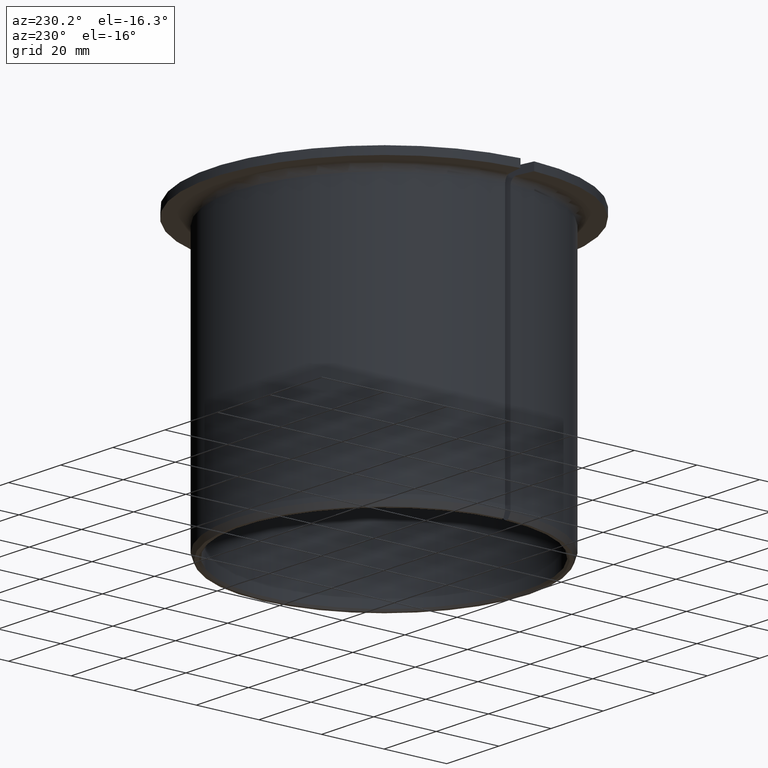
[diagram: clean part render]
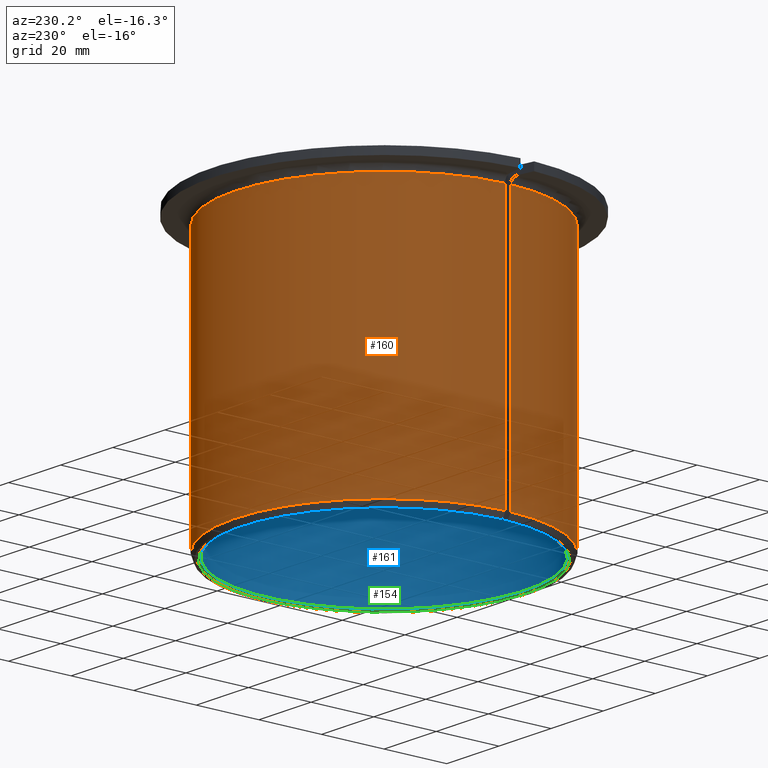
[diagram: same view with three faces highlighted in distinct colors, each labeled with its STEP entity id]
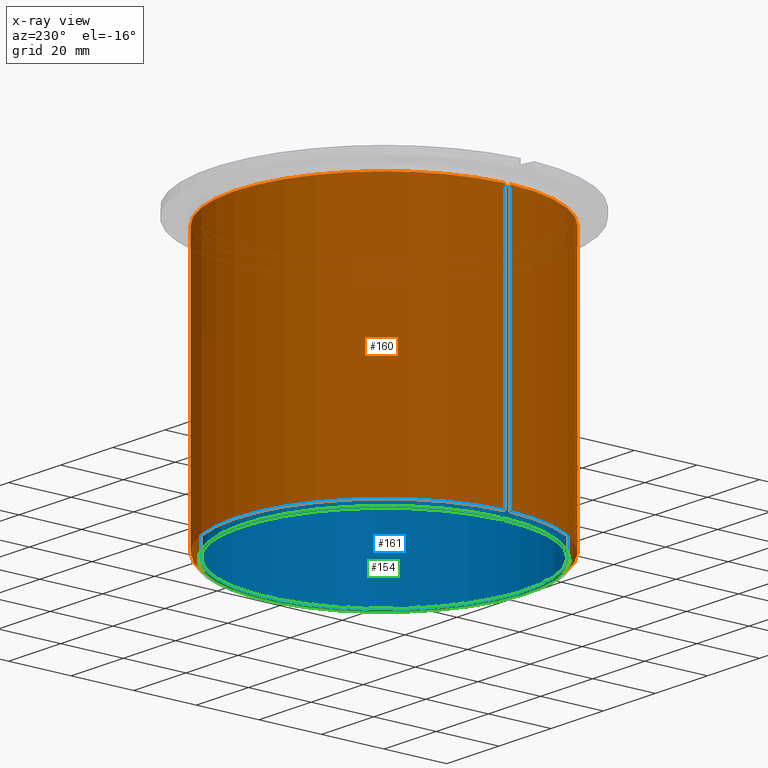
[diagram: x-ray of the same camera — body ghosted, the three highlighted faces saturated]
A machine part, auxiliary view with three faces highlighted in distinct colors.
The next image is the same camera in x-ray (body ghosted, the three faces saturated) — at least one of them is partly hidden behind the body in this view.
Their STEP definitions:

[orange] entity #160 — the highlighted cylindrical surface (partial cylindrical patch) has radius 47.5 mm, axis along (-0, 0, -1).
#160=ADVANCED_FACE('',(#181),#182,.T.);
#181=FACE_OUTER_BOUND('',#206,.T.);
#182=CYLINDRICAL_SURFACE('',#207,0.0475);
#206=EDGE_LOOP('',(#271,#272,#273,#274));
#207=AXIS2_PLACEMENT_3D('',#275,#276,#277);
#271=ORIENTED_EDGE('',*,*,#330,.T.);
#272=ORIENTED_EDGE('',*,*,#336,.T.);
#273=ORIENTED_EDGE('',*,*,#337,.F.);
#274=ORIENTED_EDGE('',*,*,#317,.F.);
#275=CARTESIAN_POINT('',(0.0,0.0,0.0));
#276=DIRECTION('',(0.0,-6.12323399573677E-017,-1.0));
#277=DIRECTION('',(0.0,1.0,-6.12323399573677E-017));
#317=EDGE_CURVE('',#351,#353,#354,.T.);
#330=EDGE_CURVE('',#351,#374,#376,.T.);
#336=EDGE_CURVE('',#374,#384,#385,.T.);
#337=EDGE_CURVE('',#353,#384,#386,.T.);
#351=VERTEX_POINT('',#421);
#353=VERTEX_POINT('',#438);
#354=LINE('',#439,#440);
#374=VERTEX_POINT('',#488);
#376=CIRCLE('',#505,0.0475);
#384=VERTEX_POINT('',#516);
#385=LINE('',#517,#518);
#386=CIRCLE('',#519,0.0475);
#421=CARTESIAN_POINT('',(0.0474918440745789,-0.000880196793837939,0.0855));
#438=CARTESIAN_POINT('',(0.0474918440745789,-0.000880196793837944,0.0018));
#439=CARTESIAN_POINT('',(0.0474918440745789,-0.000880196793837944,7.21840255120119E-020));
#440=VECTOR('',#533,1.0);
#488=CARTESIAN_POINT('',(0.0474918440745789,0.000880196793837954,0.0855));
#505=AXIS2_PLACEMENT_3D('',#551,#552,#553);
#516=CARTESIAN_POINT('',(0.0474918440745789,0.000880196793837948,0.0018));
#517=CARTESIAN_POINT('',(0.0474918440745789,0.000880196793837948,-9.94367842672578E-020));
#518=VECTOR('',#563,1.0);
#519=AXIS2_PLACEMENT_3D('',#564,#565,#566);
#533=DIRECTION('',(0.0,-6.12323399573677E-017,-1.0));
#551=CARTESIAN_POINT('',(0.0,6.93889390390723E-018,0.0855));
#552=DIRECTION('',(0.0,-6.12323399573677E-017,-1.0));
#553=DIRECTION('',(0.0,1.0,-6.12323399573677E-017));
#563=DIRECTION('',(0.0,-6.12323399573677E-017,-1.0));
#564=CARTESIAN_POINT('',(0.0,0.0,0.0018));
#565=DIRECTION('',(0.0,-6.12323399573677E-017,-1.0));
#566=DIRECTION('',(0.0,1.0,-6.12323399573677E-017));

[blue] entity #161 — the highlighted cylindrical surface (partial cylindrical patch) has radius 45 mm, axis along (-0, 0, -1).
#161=ADVANCED_FACE('',(#183),#184,.F.);
#183=FACE_OUTER_BOUND('',#208,.T.);
#184=CYLINDRICAL_SURFACE('',#209,0.045);
#208=EDGE_LOOP('',(#278,#279,#280,#281));
#209=AXIS2_PLACEMENT_3D('',#282,#283,#284);
#278=ORIENTED_EDGE('',*,*,#324,.T.);
#279=ORIENTED_EDGE('',*,*,#338,.T.);
#280=ORIENTED_EDGE('',*,*,#325,.F.);
#281=ORIENTED_EDGE('',*,*,#321,.F.);
#282=CARTESIAN_POINT('',(0.0,0.0,0.0));
#283=DIRECTION('',(0.0,-6.12323399573677E-017,-1.0));
#284=DIRECTION('',(0.0,1.0,-6.12323399573677E-017));
#321=EDGE_CURVE('',#359,#342,#361,.F.);
#324=EDGE_CURVE('',#359,#364,#366,.T.);
#325=EDGE_CURVE('',#342,#367,#368,.T.);
#338=EDGE_CURVE('',#364,#367,#387,.F.);
#342=VERTEX_POINT('',#392);
#359=VERTEX_POINT('',#449);
#361=LINE('',#454,#455);
#364=VERTEX_POINT('',#458);
#366=CIRCLE('',#463,0.045);
#367=VERTEX_POINT('',#464);
#368=CIRCLE('',#465,0.045);
#387=LINE('',#520,#521);
#392=CARTESIAN_POINT('',(0.0449978445584467,-0.000440437389269974,0.0855));
#449=CARTESIAN_POINT('',(0.0449978445584467,-0.000440437389269978,0.0006));
#454=CARTESIAN_POINT('',(0.0449978445584467,-0.000440437389269979,4.52565281520567E-020));
#455=VECTOR('',#535,1.0);
#458=CARTESIAN_POINT('',(0.0449978445584467,0.000440437389269984,0.0006));
#463=AXIS2_PLACEMENT_3D('',#539,#540,#541);
#464=CARTESIAN_POINT('',(0.0449978445584467,0.000440437389269989,0.0855));
#465=AXIS2_PLACEMENT_3D('',#542,#543,#544);
#520=CARTESIAN_POINT('',(0.0449978445584467,0.000440437389269984,-7.25092869073027E-020));
#521=VECTOR('',#567,1.0);
#535=DIRECTION('',(0.0,-6.12323399573677E-017,-1.0));
#539=CARTESIAN_POINT('',(0.0,0.0,0.0006));
#540=DIRECTION('',(0.0,-6.12323399573677E-017,-1.0));
#541=DIRECTION('',(0.0,1.0,-6.12323399573677E-017));
#542=CARTESIAN_POINT('',(0.0,6.93889390390723E-018,0.0855));
#543=DIRECTION('',(0.0,-6.12323399573677E-017,-1.0));
#544=DIRECTION('',(0.0,1.0,-6.12323399573677E-017));
#567=DIRECTION('',(0.0,-6.12323399573677E-017,-1.0));

[green] entity #154 — the highlighted conical surface has half-angle 45 deg.
#154=ADVANCED_FACE('',(#169),#170,.F.);
#169=FACE_OUTER_BOUND('',#194,.T.);
#170=CONICAL_SURFACE('',#195,0.045,0.785398163397448);
#194=EDGE_LOOP('',(#229,#230,#231,#232));
#195=AXIS2_PLACEMENT_3D('',#233,#234,#235);
#229=ORIENTED_EDGE('',*,*,#322,.T.);
#230=ORIENTED_EDGE('',*,*,#323,.T.);
#231=ORIENTED_EDGE('',*,*,#324,.F.);
#232=ORIENTED_EDGE('',*,*,#320,.F.);
#233=CARTESIAN_POINT('',(0.0,0.0,0.0006));
#234=DIRECTION('',(0.0,-6.12323399573677E-017,-1.0));
#235=DIRECTION('',(0.0,1.0,-6.12323399573677E-017));
#320=EDGE_CURVE('',#357,#359,#360,.T.);
#322=EDGE_CURVE('',#357,#362,#363,.T.);
#323=EDGE_CURVE('',#362,#364,#365,.T.);
#324=EDGE_CURVE('',#359,#364,#366,.T.);
#357=VERTEX_POINT('',#446);
#359=VERTEX_POINT('',#449);
#360=B_SPLINE_CURVE_WITH_KNOTS('',3,(#450,#451,#452,#453),.UNSPECIFIED.,.F.,.F.,(4,4),(2.84738308251013E-007,0.000854577328049238),.UNSPECIFIED.);
#362=VERTEX_POINT('',#456);
#363=CIRCLE('',#457,0.0456);
#364=VERTEX_POINT('',#458);
#365=B_SPLINE_CURVE_WITH_KNOTS('',3,(#459,#460,#461,#462),.UNSPECIFIED.,.F.,.F.,(4,4),(2.8473830825099E-007,0.000854577328049238),.UNSPECIFIED.);
#366=CIRCLE('',#463,0.045);
#446=CARTESIAN_POINT('',(0.0455967306220434,-0.000546037160652355,6.43083039248804E-019));
#449=CARTESIAN_POINT('',(0.0449978445584467,-0.000440437389269978,0.0006));
#450=CARTESIAN_POINT('',(0.0455967306220434,-0.00054603716065236,-2.51186459207152E-017));
#451=CARTESIAN_POINT('',(0.0453971195975806,-0.000510840351392714,0.000200018177136199));
#452=CARTESIAN_POINT('',(0.045197491146778,-0.000475640469399187,0.00040001842442084));
#453=CARTESIAN_POINT('',(0.0449978445584467,-0.000440437389269982,0.000600000000000009));
#456=CARTESIAN_POINT('',(0.0455967306220434,0.000546037160652359,5.77228682746705E-019));
#457=AXIS2_PLACEMENT_3D('',#536,#537,#538);
#458=CARTESIAN_POINT('',(0.0449978445584467,0.000440437389269984,0.0006));
#459=CARTESIAN_POINT('',(0.0455967306220434,0.000546037160652365,-2.50635472004508E-017));
#460=CARTESIAN_POINT('',(0.0453971195975806,0.000510840351392719,0.000200018177136199));
#461=CARTESIAN_POINT('',(0.045197491146778,0.000475640469399192,0.00040001842442084));
#462=CARTESIAN_POINT('',(0.0449978445584467,0.000440437389269987,0.000600000000000009));
#463=AXIS2_PLACEMENT_3D('',#539,#540,#541);
#536=CARTESIAN_POINT('',(0.0,0.0,0.0));
#537=DIRECTION('',(0.0,-6.12323399573677E-017,-1.0));
#538=DIRECTION('',(0.0,1.0,-6.12323399573677E-017));
#539=CARTESIAN_POINT('',(0.0,0.0,0.0006));
#540=DIRECTION('',(0.0,-6.12323399573677E-017,-1.0));
#541=DIRECTION('',(0.0,1.0,-6.12323399573677E-017));